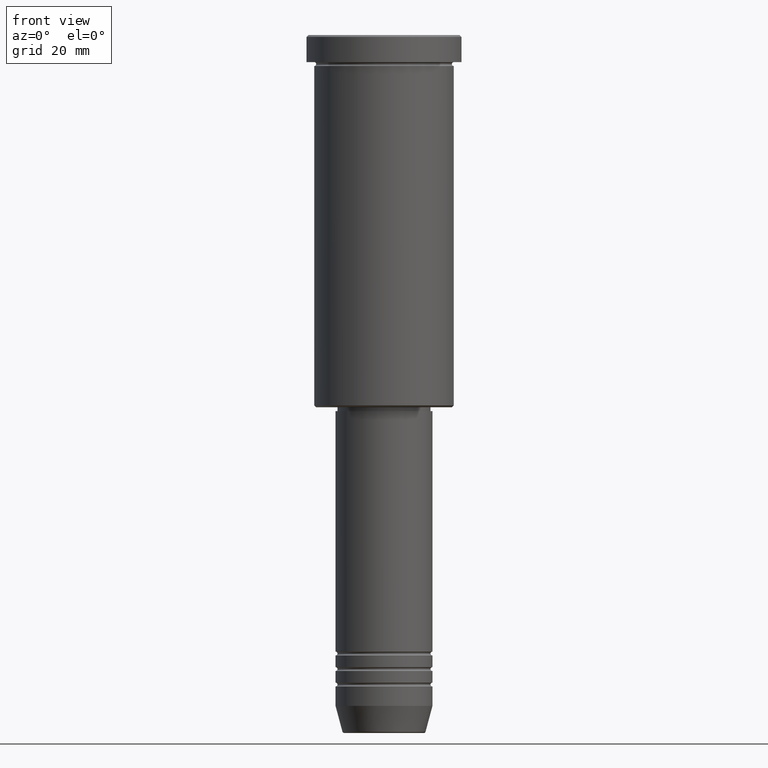
[diagram: clean part render]
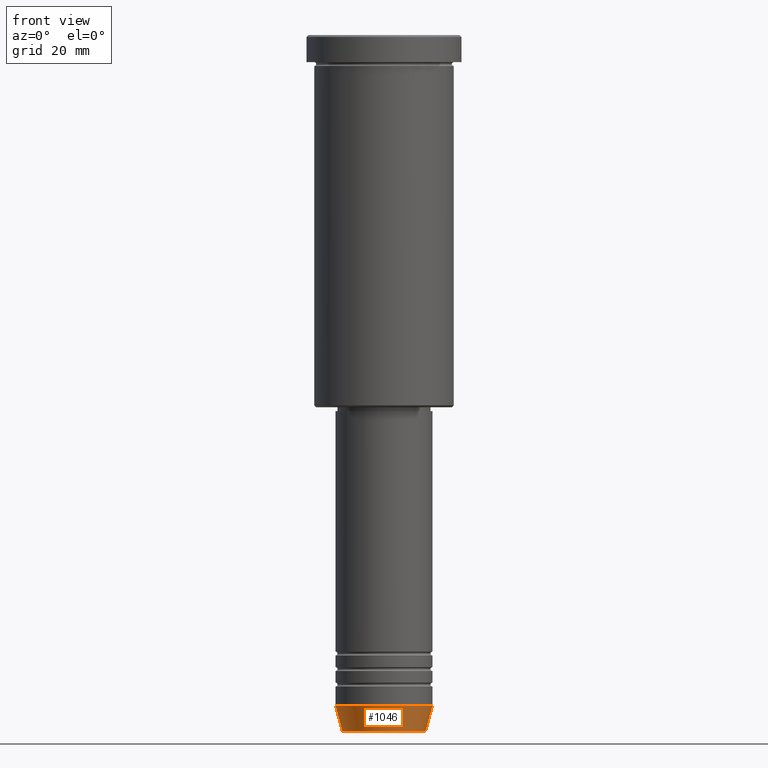
[diagram: same view with one face highlighted and labeled with its STEP entity id]
A machine part, front view. The second image highlights one B-rep face of the part: STEP entity #1046.
In plain terms, the highlighted conical surface has half-angle 15 deg.
Its self-contained STEP definition (entity closure, byte-faithful):
#26 = VERTEX_POINT ( 'NONE', #541 ) ;
#99 = FACE_OUTER_BOUND ( 'NONE', #297, .T. ) ;
#142 = VERTEX_POINT ( 'NONE', #1016 ) ;
#150 = CARTESIAN_POINT ( 'NONE',  ( -12.50000000000000000, 1.530808498934191521E-15, -173.0000000000000284 ) ) ;
#174 = CARTESIAN_POINT ( 'NONE',  ( 0.000000000000000000, 0.000000000000000000, -179.6294095225512706 ) ) ;
#197 = VERTEX_POINT ( 'NONE', #754 ) ;
#265 = CIRCLE ( 'NONE', #1010, 12.50000000000000000 ) ;
#269 = EDGE_CURVE ( 'NONE', #197, #667, #265, .T. ) ;
#297 = EDGE_LOOP ( 'NONE', ( #959, #979, #463, #602 ) ) ;
#361 = CARTESIAN_POINT ( 'NONE',  ( 0.000000000000000000, 0.000000000000000000, -173.0000000000000284 ) ) ;
#374 = CONICAL_SURFACE ( 'NONE', #852, 12.50000000000000000, 0.2617993877991500740 ) ;
#439 = AXIS2_PLACEMENT_3D ( 'NONE', #174, #998, #910 ) ;
#463 = ORIENTED_EDGE ( 'NONE', *, *, #518, .T. ) ;
#481 = DIRECTION ( 'NONE',  ( 1.000000000000000000, 0.000000000000000000, 0.000000000000000000 ) ) ;
#518 = EDGE_CURVE ( 'NONE', #142, #667, #963, .T. ) ;
#519 = DIRECTION ( 'NONE',  ( -0.2588190451025213501, 3.169619151431772337E-17, 0.9659258262890680902 ) ) ;
#541 = CARTESIAN_POINT ( 'NONE',  ( -10.72365507213719127, 1.422038742429750516E-15, -179.6294095225512706 ) ) ;
#568 = CARTESIAN_POINT ( 'NONE',  ( 12.50000000000000000, 0.000000000000000000, -173.0000000000000284 ) ) ;
#597 = EDGE_CURVE ( 'NONE', #26, #197, #607, .T. ) ;
#602 = ORIENTED_EDGE ( 'NONE', *, *, #269, .F. ) ;
#607 = LINE ( 'NONE', #150, #632 ) ;
#613 = VECTOR ( 'NONE', #1147, 1000.000000000000000 ) ;
#632 = VECTOR ( 'NONE', #519, 1000.000000000000000 ) ;
#655 = DIRECTION ( 'NONE',  ( -0.000000000000000000, -0.000000000000000000, 1.000000000000000000 ) ) ;
#667 = VERTEX_POINT ( 'NONE', #568 ) ;
#687 = EDGE_CURVE ( 'NONE', #26, #142, #952, .T. ) ;
#726 = CARTESIAN_POINT ( 'NONE',  ( 12.50000000000000000, 0.000000000000000000, -173.0000000000000284 ) ) ;
#754 = CARTESIAN_POINT ( 'NONE',  ( -12.50000000000000000, 1.530808498934191521E-15, -173.0000000000000284 ) ) ;
#842 = DIRECTION ( 'NONE',  ( -0.000000000000000000, -0.000000000000000000, 1.000000000000000000 ) ) ;
#852 = AXIS2_PLACEMENT_3D ( 'NONE', #1165, #655, #909 ) ;
#909 = DIRECTION ( 'NONE',  ( 1.000000000000000000, 0.000000000000000000, 0.000000000000000000 ) ) ;
#910 = DIRECTION ( 'NONE',  ( 1.000000000000000000, 0.000000000000000000, 0.000000000000000000 ) ) ;
#952 = CIRCLE ( 'NONE', #439, 10.72365507213719127 ) ;
#959 = ORIENTED_EDGE ( 'NONE', *, *, #597, .F. ) ;
#963 = LINE ( 'NONE', #726, #613 ) ;
#979 = ORIENTED_EDGE ( 'NONE', *, *, #687, .T. ) ;
#998 = DIRECTION ( 'NONE',  ( -0.000000000000000000, -0.000000000000000000, 1.000000000000000000 ) ) ;
#1010 = AXIS2_PLACEMENT_3D ( 'NONE', #361, #842, #481 ) ;
#1016 = CARTESIAN_POINT ( 'NONE',  ( 10.72365507213719127, 0.000000000000000000, -179.6294095225512706 ) ) ;
#1046 = ADVANCED_FACE ( 'NONE', ( #99 ), #374, .T. ) ;
#1147 = DIRECTION ( 'NONE',  ( 0.2588190451025213501, 0.000000000000000000, 0.9659258262890680902 ) ) ;
#1165 = CARTESIAN_POINT ( 'NONE',  ( 0.000000000000000000, 0.000000000000000000, -173.0000000000000284 ) ) ;